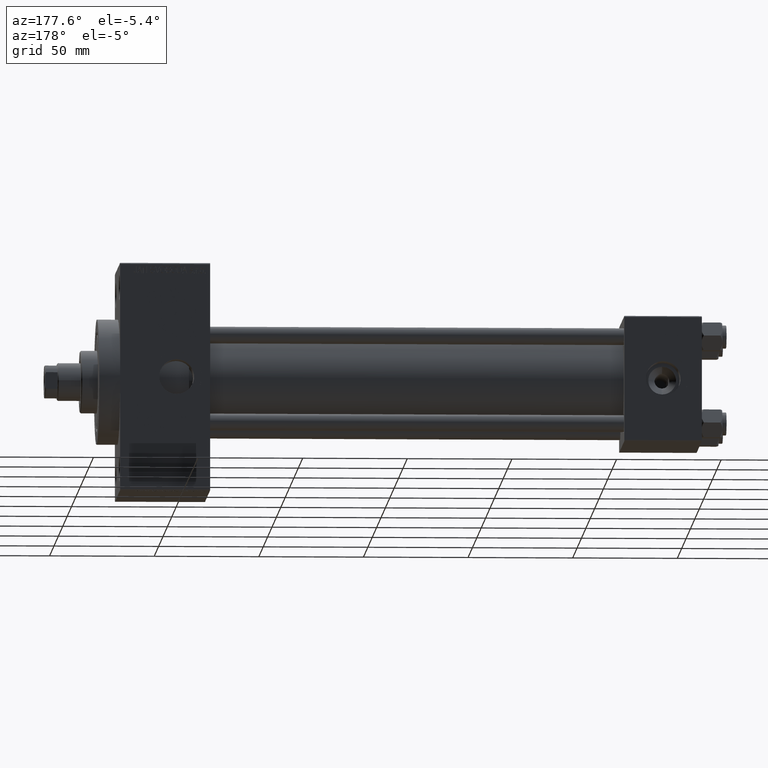
[diagram: clean part render]
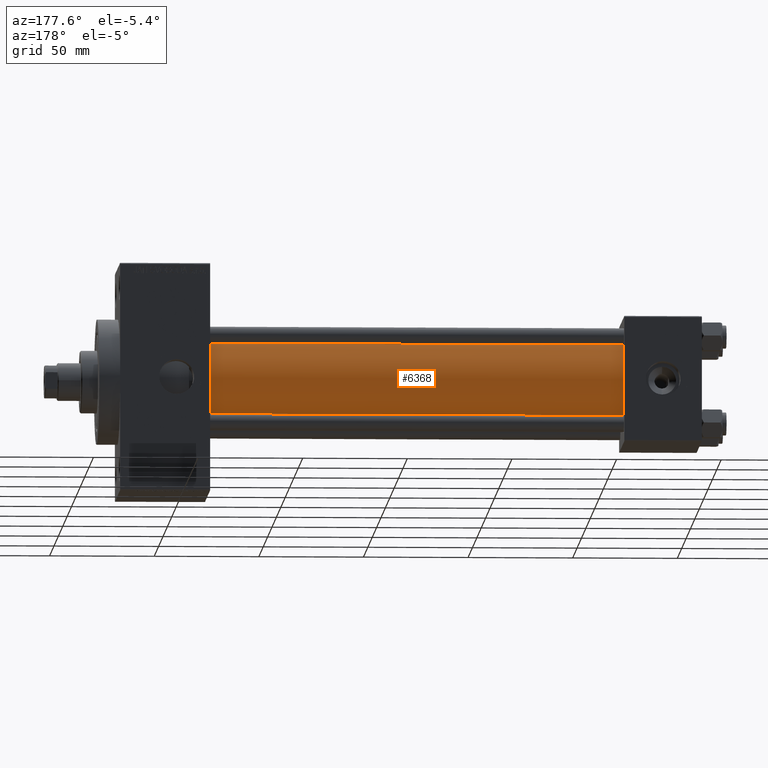
[diagram: same view with one face highlighted and labeled with its STEP entity id]
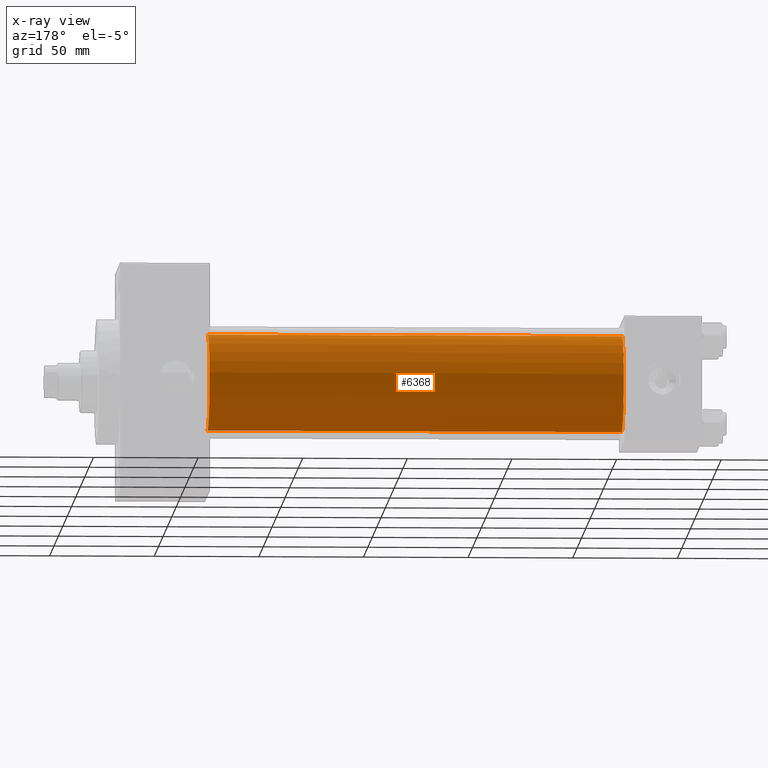
[diagram: x-ray of the same camera — body ghosted, the highlighted face saturated]
A machine part, auxiliary view. The second image highlights one B-rep face of the part: STEP entity #6368.
The next image is the same camera in x-ray: the body ghosted, the highlighted face saturated — about 0% of this face is hidden behind the body in this view.
In plain terms, the highlighted cylindrical surface (partial cylindrical patch) has radius 23 mm, axis along (-1, -0, -0).
Its self-contained STEP definition (entity closure, byte-faithful):
#828 = EDGE_CURVE ( 'NONE', #42208, #2584, #38548, .T. ) ;
#2584 = VERTEX_POINT ( 'NONE', #44292 ) ;
#4453 = AXIS2_PLACEMENT_3D ( 'NONE', #29182, #40700, #6403 ) ;
#6368 = ADVANCED_FACE ( 'NONE', ( #13651 ), #28936, .T. ) ;
#6403 = DIRECTION ( 'NONE',  ( 0.000000000000000000, 0.000000000000000000, 1.000000000000000000 ) ) ;
#9396 = VECTOR ( 'NONE', #13097, 1000.000000000000000 ) ;
#11862 = CIRCLE ( 'NONE', #47876, 23.00000000000000000 ) ;
#13097 = DIRECTION ( 'NONE',  ( -1.000000000000000000, -0.000000000000000000, -0.000000000000000000 ) ) ;
#13292 = ORIENTED_EDGE ( 'NONE', *, *, #15143, .F. ) ;
#13651 = FACE_OUTER_BOUND ( 'NONE', #32803, .T. ) ;
#15143 = EDGE_CURVE ( 'NONE', #29173, #47870, #32131, .T. ) ;
#15151 = CIRCLE ( 'NONE', #35962, 23.00000000000000000 ) ;
#16858 = ORIENTED_EDGE ( 'NONE', *, *, #29217, .F. ) ;
#16881 = CARTESIAN_POINT ( 'NONE',  ( 235.0000000000000284, -2.602085213965210642E-15, 0.000000000000000000 ) ) ;
#21113 = CARTESIAN_POINT ( 'NONE',  ( 235.0000000000000284, 2.146024240737016609E-16, -23.00000000000000000 ) ) ;
#24006 = DIRECTION ( 'NONE',  ( -1.000000000000000000, -0.000000000000000000, -0.000000000000000000 ) ) ;
#28419 = DIRECTION ( 'NONE',  ( 0.000000000000000000, 0.000000000000000000, -1.000000000000000000 ) ) ;
#28936 = CYLINDRICAL_SURFACE ( 'NONE', #4453, 23.00000000000000000 ) ;
#29173 = VERTEX_POINT ( 'NONE', #43452 ) ;
#29182 = CARTESIAN_POINT ( 'NONE',  ( 235.0000000000000284, -2.602085213965210642E-15, 0.000000000000000000 ) ) ;
#29217 = EDGE_CURVE ( 'NONE', #42208, #29173, #11862, .T. ) ;
#31037 = CARTESIAN_POINT ( 'NONE',  ( 235.0000000000000284, 2.146024240737016609E-16, -23.00000000000000000 ) ) ;
#32131 = LINE ( 'NONE', #39896, #9396 ) ;
#32167 = DIRECTION ( 'NONE',  ( 1.000000000000000000, 0.000000000000000000, 0.000000000000000000 ) ) ;
#32803 = EDGE_LOOP ( 'NONE', ( #16858, #46653, #38428, #13292 ) ) ;
#32919 = DIRECTION ( 'NONE',  ( 0.000000000000000000, 0.000000000000000000, 1.000000000000000000 ) ) ;
#33005 = VECTOR ( 'NONE', #24006, 1000.000000000000000 ) ;
#35391 = EDGE_CURVE ( 'NONE', #2584, #47870, #15151, .T. ) ;
#35962 = AXIS2_PLACEMENT_3D ( 'NONE', #36185, #40687, #32919 ) ;
#36185 = CARTESIAN_POINT ( 'NONE',  ( 37.00000000000000711, -2.602085213965210642E-15, 0.000000000000000000 ) ) ;
#38428 = ORIENTED_EDGE ( 'NONE', *, *, #35391, .T. ) ;
#38548 = LINE ( 'NONE', #31037, #33005 ) ;
#39183 = CARTESIAN_POINT ( 'NONE',  ( 37.00000000000000711, -2.602085213965210642E-15, 23.00000000000000000 ) ) ;
#39896 = CARTESIAN_POINT ( 'NONE',  ( 235.0000000000000284, -2.602085213965210642E-15, 23.00000000000000000 ) ) ;
#40687 = DIRECTION ( 'NONE',  ( 1.000000000000000000, -0.000000000000000000, 0.000000000000000000 ) ) ;
#40700 = DIRECTION ( 'NONE',  ( -1.000000000000000000, -0.000000000000000000, -0.000000000000000000 ) ) ;
#42208 = VERTEX_POINT ( 'NONE', #21113 ) ;
#43452 = CARTESIAN_POINT ( 'NONE',  ( 235.0000000000000284, -2.602085213965210642E-15, 23.00000000000000000 ) ) ;
#44292 = CARTESIAN_POINT ( 'NONE',  ( 37.00000000000000711, 2.146024240737016609E-16, -23.00000000000000000 ) ) ;
#46653 = ORIENTED_EDGE ( 'NONE', *, *, #828, .T. ) ;
#47870 = VERTEX_POINT ( 'NONE', #39183 ) ;
#47876 = AXIS2_PLACEMENT_3D ( 'NONE', #16881, #32167, #28419 ) ;